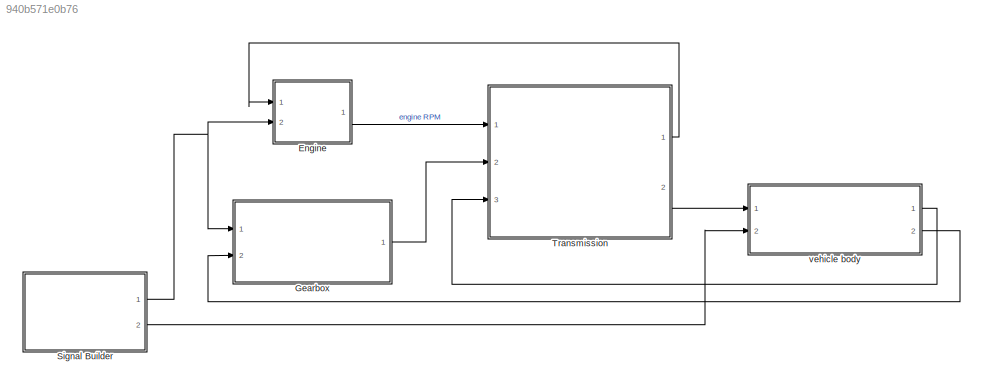
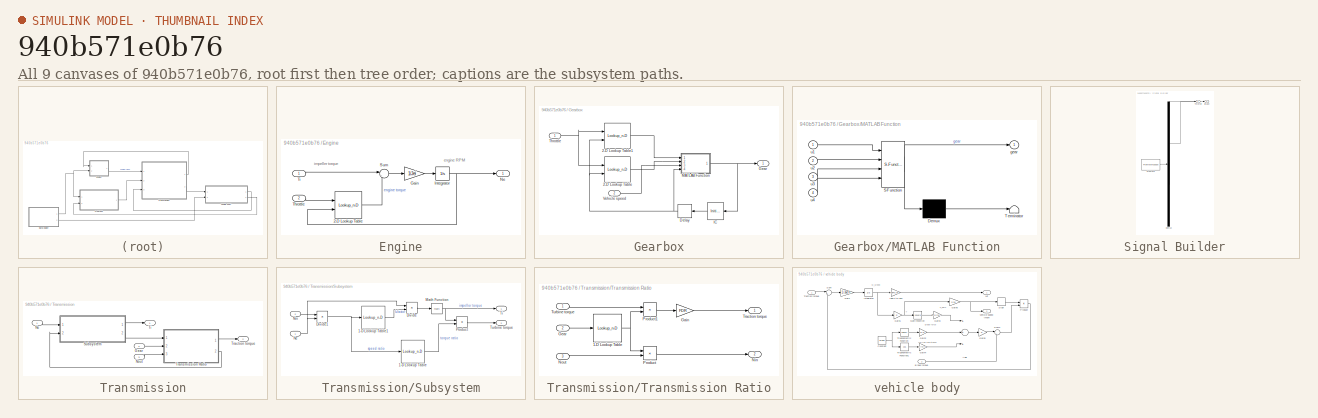
[diagram: thumbnail index - all 9 canvases of the model, root first then tree order]
MODEL slx_940b571e0b76
KIND model
CONFIG AbsTol = auto
CONFIG EnableMultiTasking = off
CONFIG FixedStep = 0.04
CONFIG MaxStep = auto
CONFIG MinStep = auto
CONFIG RelTol = 1e-3
CONFIG SampleTimeConstraint = Unconstrained
CONFIG Solver = ode5
CONFIG SolverName = ode5
CONFIG StartTime = 0.0
CONFIG StopTime = 30
BLOCK [SubSystem] Engine
  Ports = [2, 1]
  RequestExecContextInheritance = off
BLOCK [Lookup_n-D] Engine/2-D Lookup Table
  BreakpointsForDimension1 = TH_VEC
  BreakpointsForDimension2 = NE_VEC
  InternalRulePriority = Speed
  Ports = [2, 1]
  RndMeth = Simplest
  Table = EMAP
BLOCK [Gain] Engine/Gain
  Gain = 1/Jei
  OutDataTypeStr = Inherit: Inherit via internal rule
  ParamDataTypeStr = Inherit: Inherit via internal rule
  SaturateOnIntegerOverflow = off
BLOCK [Integrator] Engine/Integrator
  InitialCondition = 1000
  LimitOutput = on
  LowerSaturationLimit = 600
  Ports = [1, 1]
  UpperSaturationLimit = 6000
BLOCK [Outport] Engine/Ne
  IconDisplay = Port number
BLOCK [Sum] Engine/Sum
  IconShape = round
  InputSameDT = off
  Inputs = |-+
  OutDataTypeStr = Inherit: Inherit via internal rule
  Ports = [2, 1]
  SaturateOnIntegerOverflow = off
BLOCK [Inport] Engine/Throttle
  IconDisplay = Port number
  Port = 2
BLOCK [Inport] Engine/Ti
  IconDisplay = Port number
BLOCK [SubSystem] Gearbox
  Ports = [2, 1]
  RequestExecContextInheritance = off
BLOCK [Lookup_n-D] Gearbox/2-D Lookup Table
  BreakpointsForDimension1 = DOWN_TH_BP
  BreakpointsForDimension2 = [1:4]
  InternalRulePriority = Speed
  Ports = [2, 1]
  RndMeth = Simplest
  Table = DOWN_TABLE
BLOCK [Lookup_n-D] Gearbox/2-D Lookup Table1
  BreakpointsForDimension1 = UP_TH_BP
  BreakpointsForDimension2 = [1:4]
  InternalRulePriority = Speed
  Ports = [2, 1]
  RndMeth = Simplest
  Table = UP_TABLE
BLOCK [Delay] Gearbox/Delay
  DelayLength = 1
  InitialCondition = 0
  InputPortMap = u0
  Ports = [1, 1]
BLOCK [Outport] Gearbox/Gear
  IconDisplay = Port number
BLOCK [InitialCondition] Gearbox/IC
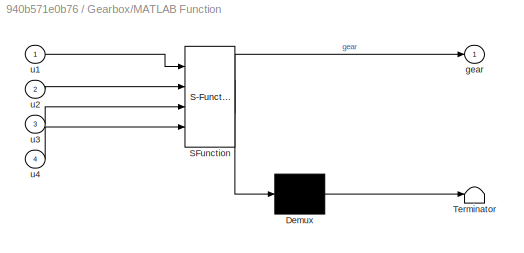
BLOCK [SubSystem] Gearbox/MATLAB Function
  ErrorFcn = Stateflow.Translate.translate
  PermitHierarchicalResolution = ExplicitOnly
  Ports = [4, 1]
  RequestExecContextInheritance = off
  SFBlockType = MATLAB Function
  TreatAsAtomicUnit = on
BLOCK [Demux] Gearbox/MATLAB Function/ Demux 
  Outputs = 1
  Ports = [1, 1]
BLOCK [S-Function] Gearbox/MATLAB Function/ SFunction 
  EnableBusSupport = off
  FunctionName = sf_sfun
  PortCounts = [4 2]
  Ports = [4, 2]
  SFcnIsStateOwnerBlock = off
  SFunctionDeploymentMode = off
  Tag = Stateflow S-Function automatic_transmission 2
BLOCK [Terminator] Gearbox/MATLAB Function/ Terminator 
BLOCK [Outport] Gearbox/MATLAB Function/gear
  IconDisplay = Port number
BLOCK [Inport] Gearbox/MATLAB Function/u1
  IconDisplay = Port number
BLOCK [Inport] Gearbox/MATLAB Function/u2
  IconDisplay = Port number
  Port = 2
BLOCK [Inport] Gearbox/MATLAB Function/u3
  IconDisplay = Port number
  Port = 3
BLOCK [Inport] Gearbox/MATLAB Function/u4
  IconDisplay = Port number
  Port = 4
BLOCK [Inport] Gearbox/Throttle
  IconDisplay = Port number
BLOCK [Inport] Gearbox/Vehicle speed
  IconDisplay = Port number
  Port = 2
BLOCK [SubSystem] Signal Builder
  ClipboardFcn = sigbuilder_block('clipboard');
  CloseFcn = sigbuilder_block('close');
  ContinueFcn = sigbuilder_block('continue');
  CopyFcn = sigbuilder_block('copy');
  DeleteFcn = sigbuilder_block('delete');
  LoadFcn = sigbuilder_block('load');
  MaskHideContents = on
  ModelCloseFcn = sigbuilder_block('modelClose');
  NameChangeFcn = sigbuilder_block('namechange');
  OpenFcn = sigbuilder_block('open',[448.8 179.4 550.8 400.2 ]);
  PauseFcn = sigbuilder_block('pause');
  Ports = [0, 2]
  PreSaveFcn = sigbuilder_block('preSave');
  RequestExecContextInheritance = off
  StartFcn = sigbuilder_block('start');
  StopFcn = sigbuilder_block('stop');
  Tag = STV Subsys
BLOCK [Outport] Signal Builder/Brake
  IconDisplay = Port number
  Port = 2
  Tag = STV Outport
BLOCK [Demux] Signal Builder/Demux
  Outputs = 2
  Ports = [1, 2]
  Tag = STV Demux
BLOCK [FromWorkspace] Signal Builder/FromWs
  SampleTime = 0
  Tag = STV FromWs
  VariableName = tuvar
  ZeroCross = on
BLOCK [Outport] Signal Builder/Throttle
  IconDisplay = Port number
  Tag = STV Outport
BLOCK [SubSystem] Transmission
  Ports = [3, 2]
  RequestExecContextInheritance = off
BLOCK [Inport] Transmission/Gear
  IconDisplay = Port number
  Port = 2
BLOCK [Inport] Transmission/Ne
  IconDisplay = Port number
BLOCK [Inport] Transmission/Nout
  IconDisplay = Port number
  Port = 3
BLOCK [SubSystem] Transmission/Subsystem
  Ports = [2, 2]
  RequestExecContextInheritance = off
BLOCK [Lookup_n-D] Transmission/Subsystem/1-D Lookup Table
  BreakpointsForDimension1 = SpeedRatio
  InternalRulePriority = Speed
  NumberOfTableDimensions = 1
  Ports = [1, 1]
  RndMeth = Simplest
  Table = TorqueRatio
BLOCK [Lookup_n-D] Transmission/Subsystem/1-D Lookup Table1
  BreakpointsForDimension1 = SpeedRatio
  InternalRulePriority = Speed
  NumberOfTableDimensions = 1
  Ports = [1, 1]
  RndMeth = Simplest
  Table = kFactor
BLOCK [Product] Transmission/Subsystem/Divide
  InputSameDT = off
  Inputs = */
  OutDataTypeStr = Inherit: Inherit via internal rule
  Ports = [2, 1]
  RndMeth = Floor
  SaturateOnIntegerOverflow = off
BLOCK [Product] Transmission/Subsystem/Divide1
  InputSameDT = off
  Inputs = */
  OutDataTypeStr = Inherit: Inherit via internal rule
  Ports = [2, 1]
  RndMeth = Floor
  SaturateOnIntegerOverflow = off
BLOCK [Math] Transmission/Subsystem/Math Function
  Ports = [1, 1]
BLOCK [Inport] Transmission/Subsystem/Ne
  IconDisplay = Port number
BLOCK [Inport] Transmission/Subsystem/Nin
  IconDisplay = Port number
  Port = 2
BLOCK [Product] Transmission/Subsystem/Product
  InputSameDT = off
  OutDataTypeStr = Inherit: Inherit via internal rule
  Ports = [2, 1]
  RndMeth = Floor
  SaturateOnIntegerOverflow = off
BLOCK [Outport] Transmission/Subsystem/Ti
  IconDisplay = Port number
BLOCK [Outport] Transmission/Subsystem/Turbine torque
  IconDisplay = Port number
  Port = 2
BLOCK [Outport] Transmission/Ti
  IconDisplay = Port number
BLOCK [Outport] Transmission/Traction torque
  IconDisplay = Port number
  Port = 2
BLOCK [SubSystem] Transmission/Transmission Ratio
  Ports = [3, 2]
  RequestExecContextInheritance = off
BLOCK [Lookup_n-D] Transmission/Transmission Ratio/1-D Lookup Table
  BreakpointsForDimension1 = [1:4]
  InternalRulePriority = Speed
  NumberOfTableDimensions = 1
  Ports = [1, 1]
  RndMeth = Simplest
  Table = [2.393 1.450 1.000 0.677]
BLOCK [Gain] Transmission/Transmission Ratio/Gain
  Gain = FDR
  OutDataTypeStr = Inherit: Inherit via internal rule
  ParamDataTypeStr = Inherit: Inherit via internal rule
  SaturateOnIntegerOverflow = off
BLOCK [Inport] Transmission/Transmission Ratio/Gear
  IconDisplay = Port number
  Port = 2
BLOCK [Outport] Transmission/Transmission Ratio/Nin
  IconDisplay = Port number
  Port = 2
BLOCK [Inport] Transmission/Transmission Ratio/Nout
  IconDisplay = Port number
  Port = 3
BLOCK [Product] Transmission/Transmission Ratio/Product
  InputSameDT = off
  OutDataTypeStr = Inherit: Inherit via internal rule
  Ports = [2, 1]
  RndMeth = Floor
  SaturateOnIntegerOverflow = off
BLOCK [Product] Transmission/Transmission Ratio/Product1
  InputSameDT = off
  OutDataTypeStr = Inherit: Inherit via internal rule
  Ports = [2, 1]
  RndMeth = Floor
  SaturateOnIntegerOverflow = off
BLOCK [Outport] Transmission/Transmission Ratio/Traction torque
  IconDisplay = Port number
BLOCK [Inport] Transmission/Transmission Ratio/Turbine torque
  IconDisplay = Port number
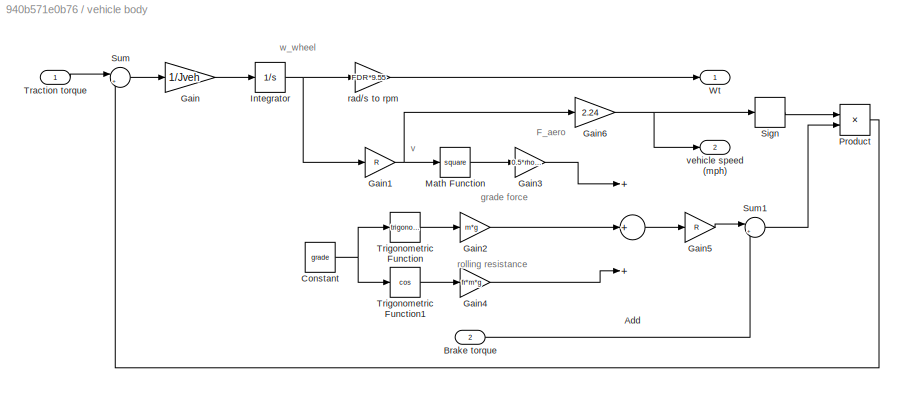
BLOCK [SubSystem] vehicle body
  Ports = [2, 2]
  RequestExecContextInheritance = off
BLOCK [Sum] vehicle body/Add
  InputSameDT = off
  Inputs = +++
  OutDataTypeStr = Inherit: Inherit via internal rule
  Ports = [3, 1]
  SaturateOnIntegerOverflow = off
BLOCK [Inport] vehicle body/Brake torque
  IconDisplay = Port number
  Port = 2
BLOCK [Constant] vehicle body/Constant
  Value = grade
BLOCK [Gain] vehicle body/Gain
  Gain = 1/Jveh
  OutDataTypeStr = Inherit: Inherit via internal rule
  ParamDataTypeStr = Inherit: Inherit via internal rule
  SaturateOnIntegerOverflow = off
BLOCK [Gain] vehicle body/Gain1
  Gain = R
  OutDataTypeStr = Inherit: Inherit via internal rule
  ParamDataTypeStr = Inherit: Inherit via internal rule
  SaturateOnIntegerOverflow = off
BLOCK [Gain] vehicle body/Gain2
  Gain = m*g
  OutDataTypeStr = Inherit: Inherit via internal rule
  ParamDataTypeStr = Inherit: Inherit via internal rule
  SaturateOnIntegerOverflow = off
BLOCK [Gain] vehicle body/Gain3
  Gain = 0.5*rho*cd*A
  OutDataTypeStr = Inherit: Inherit via internal rule
  ParamDataTypeStr = Inherit: Inherit via internal rule
  SaturateOnIntegerOverflow = off
BLOCK [Gain] vehicle body/Gain4
  Gain = fr*m*g
  OutDataTypeStr = Inherit: Inherit via internal rule
  ParamDataTypeStr = Inherit: Inherit via internal rule
  SaturateOnIntegerOverflow = off
BLOCK [Gain] vehicle body/Gain5
  Gain = R
  OutDataTypeStr = Inherit: Inherit via internal rule
  ParamDataTypeStr = Inherit: Inherit via internal rule
  SaturateOnIntegerOverflow = off
BLOCK [Gain] vehicle body/Gain6
  Gain = 2.24
  OutDataTypeStr = Inherit: Inherit via internal rule
  ParamDataTypeStr = Inherit: Inherit via internal rule
  SaturateOnIntegerOverflow = off
BLOCK [Integrator] vehicle body/Integrator
  Ports = [1, 1]
BLOCK [Math] vehicle body/Math Function
  Operator = square
  Ports = [1, 1]
BLOCK [Product] vehicle body/Product
  InputSameDT = off
  OutDataTypeStr = Inherit: Inherit via internal rule
  Ports = [2, 1]
  RndMeth = Floor
  SaturateOnIntegerOverflow = off
BLOCK [Signum] vehicle body/Sign
BLOCK [Sum] vehicle body/Sum
  IconShape = round
  InputSameDT = off
  Inputs = |+-
  OutDataTypeStr = Inherit: Inherit via internal rule
  Ports = [2, 1]
  SaturateOnIntegerOverflow = off
BLOCK [Sum] vehicle body/Sum1
  IconShape = round
  InputSameDT = off
  Inputs = |++
  OutDataTypeStr = Inherit: Inherit via internal rule
  Ports = [2, 1]
  SaturateOnIntegerOverflow = off
BLOCK [Inport] vehicle body/Traction torque
  IconDisplay = Port number
BLOCK [Trigonometry] vehicle body/Trigonometric Function
  Ports = [1, 1]
BLOCK [Trigonometry] vehicle body/Trigonometric Function1
  Operator = cos
  Ports = [1, 1]
BLOCK [Outport] vehicle body/Wt
  IconDisplay = Port number
BLOCK [Gain] vehicle body/rad//s to rpm
  Gain = FDR*9.55
  OutDataTypeStr = Inherit: Inherit via internal rule
  ParamDataTypeStr = Inherit: Inherit via internal rule
  SaturateOnIntegerOverflow = off
BLOCK [Outport] vehicle body/vehicle speed (mph)
  IconDisplay = Port number
  Port = 2
ANNOTATION Engine: engine RPM
ANNOTATION Engine: impeller torque
ANNOTATION vehicle body: F_aero
ANNOTATION vehicle body: grade force
ANNOTATION vehicle body: rolling resistance
ANNOTATION vehicle body: v
ANNOTATION vehicle body: w_wheel
LINE Engine/2-D Lookup Table:1 -> Engine/Sum:2
LINE Engine/Gain:1 -> Engine/Integrator:1
NET Engine/Integrator:1 -> Engine/2-D Lookup Table:2, Engine/Ne:1
LINE Engine/Sum:1 -> Engine/Gain:1
LINE Engine/Throttle:1 -> Engine/2-D Lookup Table:1
LINE Engine/Ti:1 -> Engine/Sum:1
LINE Engine:1 -> Transmission:1
LINE Gearbox/2-D Lookup Table1:1 -> Gearbox/MATLAB Function:1
LINE Gearbox/2-D Lookup Table:1 -> Gearbox/MATLAB Function:2
NET Gearbox/Delay:1 -> Gearbox/2-D Lookup Table1:2, Gearbox/2-D Lookup Table:2, Gearbox/MATLAB Function:4
LINE Gearbox/IC:1 -> Gearbox/Delay:1
NET Gearbox/MATLAB Function:1 -> Gearbox/Gear:1, Gearbox/IC:1
NET Gearbox/Throttle:1 -> Gearbox/2-D Lookup Table1:1, Gearbox/2-D Lookup Table:1
LINE Gearbox/Vehicle speed:1 -> Gearbox/MATLAB Function:3
LINE Gearbox:1 -> Transmission:2
NET Signal Builder:1 -> Engine:2, Gearbox:1
LINE Signal Builder:2 -> vehicle body:2
LINE Transmission/Gear:1 -> Transmission/Transmission Ratio:2
LINE Transmission/Ne:1 -> Transmission/Subsystem:1
LINE Transmission/Nout:1 -> Transmission/Transmission Ratio:3
LINE Transmission/Subsystem/1-D Lookup Table1:1 -> Transmission/Subsystem/Divide:2
LINE Transmission/Subsystem/1-D Lookup Table:1 -> Transmission/Subsystem/Product:2
NET Transmission/Subsystem/Divide1:1 -> Transmission/Subsystem/1-D Lookup Table1:1, Transmission/Subsystem/1-D Lookup Table:1
LINE Transmission/Subsystem/Divide:1 -> Transmission/Subsystem/Math Function:1
NET Transmission/Subsystem/Math Function:1 -> Transmission/Subsystem/Product:1, Transmission/Subsystem/Ti:1
NET Transmission/Subsystem/Ne:1 -> Transmission/Subsystem/Divide1:2, Transmission/Subsystem/Divide:1
LINE Transmission/Subsystem/Nin:1 -> Transmission/Subsystem/Divide1:1
LINE Transmission/Subsystem/Product:1 -> Transmission/Subsystem/Turbine torque:1
LINE Transmission/Subsystem:1 -> Transmission/Ti:1
LINE Transmission/Subsystem:2 -> Transmission/Transmission Ratio:1
NET Transmission/Transmission Ratio/1-D Lookup Table:1 -> Transmission/Transmission Ratio/Product1:2, Transmission/Transmission Ratio/Product:1
LINE Transmission/Transmission Ratio/Gain:1 -> Transmission/Transmission Ratio/Traction torque:1
LINE Transmission/Transmission Ratio/Gear:1 -> Transmission/Transmission Ratio/1-D Lookup Table:1
LINE Transmission/Transmission Ratio/Nout:1 -> Transmission/Transmission Ratio/Product:2
LINE Transmission/Transmission Ratio/Product1:1 -> Transmission/Transmission Ratio/Gain:1
LINE Transmission/Transmission Ratio/Product:1 -> Transmission/Transmission Ratio/Nin:1
LINE Transmission/Transmission Ratio/Turbine torque:1 -> Transmission/Transmission Ratio/Product1:1
LINE Transmission/Transmission Ratio:1 -> Transmission/Traction torque:1
LINE Transmission/Transmission Ratio:2 -> Transmission/Subsystem:2
LINE Transmission:1 -> Engine:1
LINE Transmission:2 -> vehicle body:1
LINE vehicle body/Add:1 -> vehicle body/Gain5:1
LINE vehicle body/Brake torque:1 -> vehicle body/Sum1:2
NET vehicle body/Constant:1 -> vehicle body/Trigonometric Function1:1, vehicle body/Trigonometric Function:1
NET vehicle body/Gain1:1 -> vehicle body/Gain6:1, vehicle body/Math Function:1
LINE vehicle body/Gain2:1 -> vehicle body/Add:2
LINE vehicle body/Gain3:1 -> vehicle body/Add:1
LINE vehicle body/Gain4:1 -> vehicle body/Add:3
LINE vehicle body/Gain5:1 -> vehicle body/Sum1:1
NET vehicle body/Gain6:1 -> vehicle body/Sign:1, vehicle body/vehicle speed (mph):1
LINE vehicle body/Gain:1 -> vehicle body/Integrator:1
NET vehicle body/Integrator:1 -> vehicle body/Gain1:1, vehicle body/rad//s to rpm:1
LINE vehicle body/Math Function:1 -> vehicle body/Gain3:1
LINE vehicle body/Product:1 -> vehicle body/Sum:2
LINE vehicle body/Sign:1 -> vehicle body/Product:1
LINE vehicle body/Sum1:1 -> vehicle body/Product:2
LINE vehicle body/Sum:1 -> vehicle body/Gain:1
LINE vehicle body/Traction torque:1 -> vehicle body/Sum:1
LINE vehicle body/Trigonometric Function1:1 -> vehicle body/Gain4:1
LINE vehicle body/Trigonometric Function:1 -> vehicle body/Gain2:1
LINE vehicle body/rad//s to rpm:1 -> vehicle body/Wt:1
LINE vehicle body:1 -> Transmission:3
LINE vehicle body:2 -> Gearbox:2
note: NET lines group one-source signal fan-out (src -> all destinations, sorted); 1:1 wires keep LINE
CHART Gearbox/MATLAB Function states=1 transitions=1
  STATE_LABEL 'eML_blk_kernel()'
  STATE_LABEL 'SCRIPT:\nfunction gear = fcn(u1,u2,u3,u4)\nstate=0;\nif (u3>u1)\n    state=1;\n    if (u3>=u1)\n        if(u4==4)\n            u4=4;\n        else\n            u4=u4+1;\n        end\n        state=0;\n    else\n        state=0;\n    end\nelseif (u3<u2)\n    state=-1;\n    if(u3<=u2)\n        if(u4==1)\n        u4=1;\n        else\n        u4=u4-1;\n        end\n        state=0;\n    else\n    state=0;\n    end\nend\ngear=u4;...<+1ch>'
